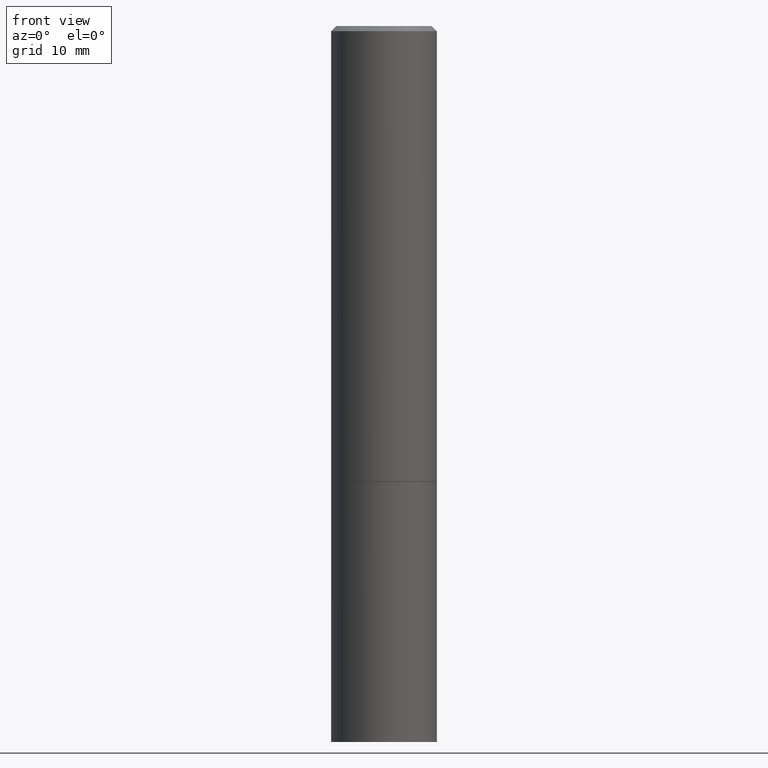
[diagram: clean part render]
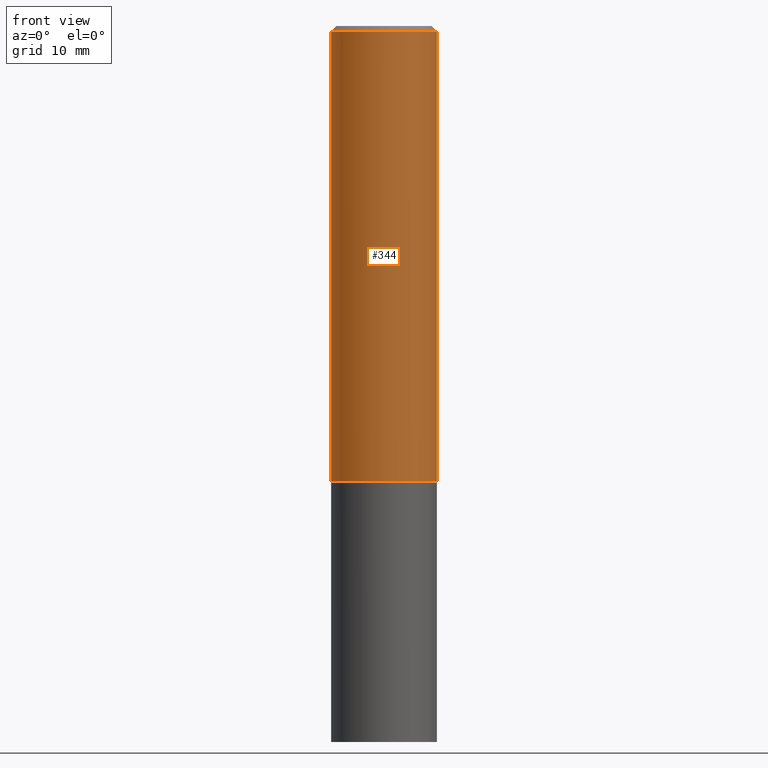
[diagram: same view with one face highlighted and labeled with its STEP entity id]
A machine part, front view. The second image highlights one B-rep face of the part: STEP entity #344.
In plain terms, the highlighted cylindrical surface (partial cylindrical patch) has radius 5.1587 mm, axis along (-0, 0, 1).
Its self-contained STEP definition (entity closure, byte-faithful):
#17 = VERTEX_POINT ( 'NONE', #365 ) ;
#29 = DIRECTION ( 'NONE',  ( -2.445468806185136877E-29, 3.491481338843145188E-15, 1.000000000000000000 ) ) ;
#34 = FACE_OUTER_BOUND ( 'NONE', #50, .T. ) ;
#36 = CYLINDRICAL_SURFACE ( 'NONE', #222, 0.2030999999999999195 ) ;
#50 = EDGE_LOOP ( 'NONE', ( #318, #166, #348, #142 ) ) ;
#53 = DIRECTION ( 'NONE',  ( 1.000000000000000000, -6.982962677686266711E-15, 0.000000000000000000 ) ) ;
#62 = DIRECTION ( 'NONE',  ( 1.000000000000000000, -6.982962677686265922E-15, 4.876176775795935793E-29 ) ) ;
#87 = DIRECTION ( 'NONE',  ( -2.445468806185136877E-29, 3.491481338843145188E-15, 1.000000000000000000 ) ) ;
#106 = VECTOR ( 'NONE', #87, 39.37007874015748143 ) ;
#107 = CARTESIAN_POINT ( 'NONE',  ( 0.000000000000000000, 0.000000000000000000, 0.000000000000000000 ) ) ;
#110 = AXIS2_PLACEMENT_3D ( 'NONE', #362, #382, #53 ) ;
#127 = VECTOR ( 'NONE', #29, 39.37007874015748143 ) ;
#142 = ORIENTED_EDGE ( 'NONE', *, *, #211, .F. ) ;
#166 = ORIENTED_EDGE ( 'NONE', *, *, #270, .T. ) ;
#174 = CIRCLE ( 'NONE', #110, 0.2030999999999998085 ) ;
#178 = LINE ( 'NONE', #299, #106 ) ;
#182 = DIRECTION ( 'NONE',  ( -2.445468806185136597E-29, 3.491481338843145583E-15, 1.000000000000000000 ) ) ;
#188 = VERTEX_POINT ( 'NONE', #327 ) ;
#195 = LINE ( 'NONE', #280, #127 ) ;
#200 = CARTESIAN_POINT ( 'NONE',  ( -0.2030999999999998085, 1.348410093061216294E-15, -0.02000000000000004552 ) ) ;
#211 = EDGE_CURVE ( 'NONE', #275, #188, #174, .T. ) ;
#214 = EDGE_CURVE ( 'NONE', #237, #275, #178, .T. ) ;
#222 = AXIS2_PLACEMENT_3D ( 'NONE', #107, #251, #62 ) ;
#237 = VERTEX_POINT ( 'NONE', #324 ) ;
#242 = DIRECTION ( 'NONE',  ( 1.000000000000000000, -6.982962677686264344E-15, 0.000000000000000000 ) ) ;
#251 = DIRECTION ( 'NONE',  ( -2.445468806185136597E-29, 3.491481338843145583E-15, 1.000000000000000000 ) ) ;
#270 = EDGE_CURVE ( 'NONE', #237, #17, #338, .T. ) ;
#275 = VERTEX_POINT ( 'NONE', #200 ) ;
#280 = CARTESIAN_POINT ( 'NONE',  ( 0.2030999999999999195, -1.418239719838079986E-15, 9.903515031641541941E-30 ) ) ;
#293 = AXIS2_PLACEMENT_3D ( 'NONE', #364, #182, #242 ) ;
#299 = CARTESIAN_POINT ( 'NONE',  ( -0.2030999999999999195, 1.443112296328762905E-15, -9.990357168307709999E-30 ) ) ;
#318 = ORIENTED_EDGE ( 'NONE', *, *, #214, .F. ) ;
#324 = CARTESIAN_POINT ( 'NONE',  ( -0.2031000000000000028, -1.645102947877997012E-15, -1.748999999999999888 ) ) ;
#327 = CARTESIAN_POINT ( 'NONE',  ( 0.2030999999999998085, -1.463196770124259971E-15, -0.02000000000000004552 ) ) ;
#338 = CIRCLE ( 'NONE', #293, 0.2031000000000000028 ) ;
#344 = ADVANCED_FACE ( 'NONE', ( #34 ), #36, .T. ) ;
#348 = ORIENTED_EDGE ( 'NONE', *, *, #379, .T. ) ;
#362 = CARTESIAN_POINT ( 'NONE',  ( 4.890937612370284544E-31, -6.982962677686307633E-17, -0.02000000000000004552 ) ) ;
#364 = CARTESIAN_POINT ( 'NONE',  ( 4.277124942017804002E-29, -6.106600861636660875E-15, -1.748999999999999888 ) ) ;
#365 = CARTESIAN_POINT ( 'NONE',  ( 0.2031000000000000028, -7.524840581474740861E-15, -1.748999999999999888 ) ) ;
#379 = EDGE_CURVE ( 'NONE', #17, #188, #195, .T. ) ;
#382 = DIRECTION ( 'NONE',  ( -2.445468806185136597E-29, 3.491481338843145583E-15, 1.000000000000000000 ) ) ;